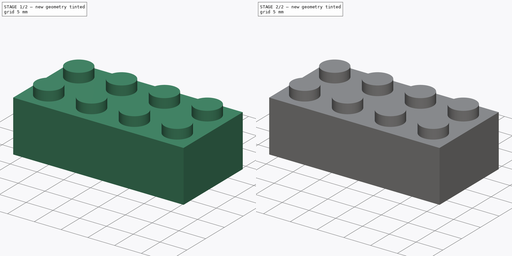
[diagram: build sequence overview — one tinted view per stage of 2, left to right]
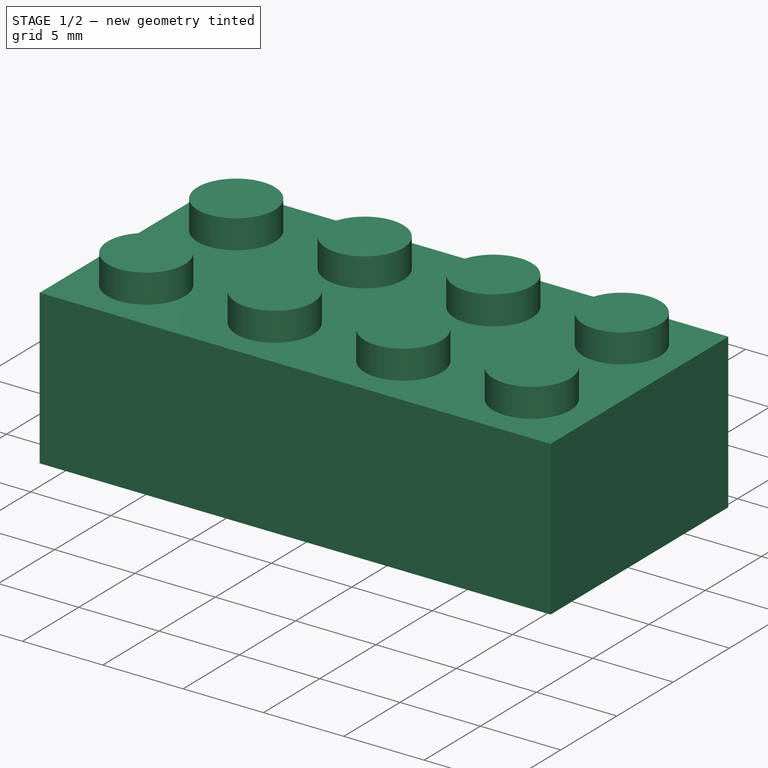
[diagram: stage 1 of 2 — iso view after this stage's code; geometry added in this stage tinted green]
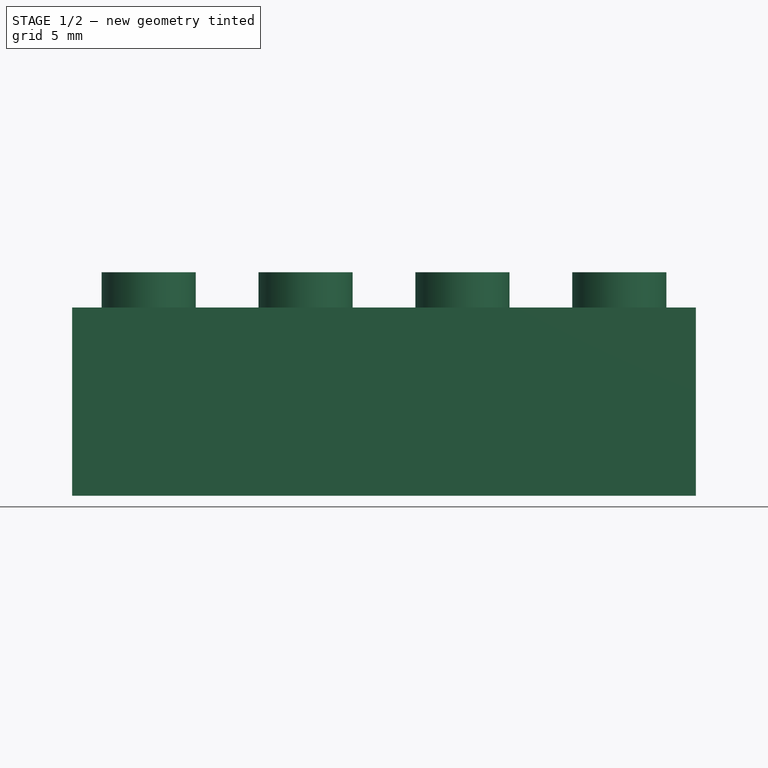
[diagram: stage 1 of 2 — front view after this stage's code; geometry added in this stage tinted green]
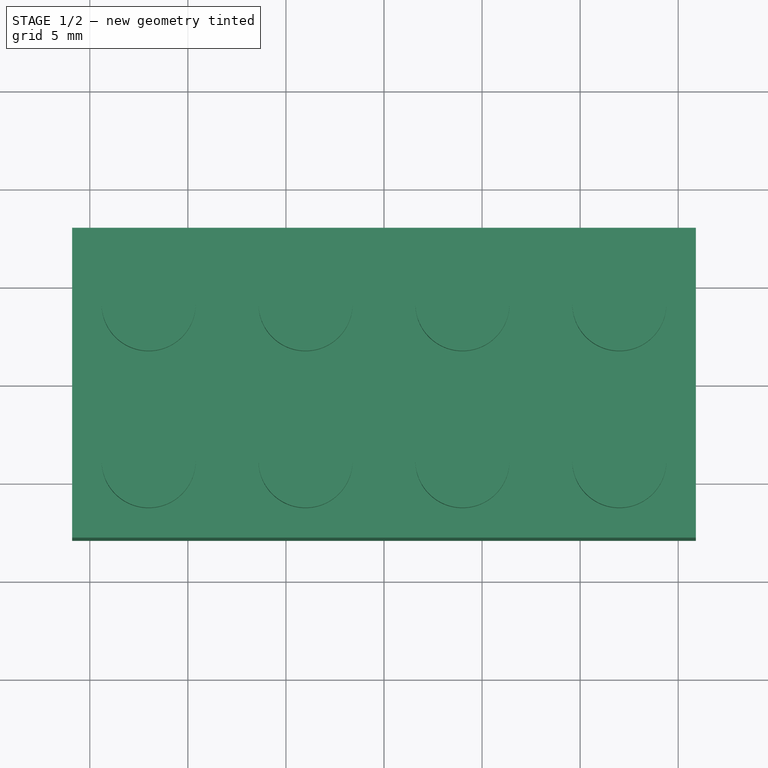
[diagram: stage 1 of 2 — top view after this stage's code; geometry added in this stage tinted green]
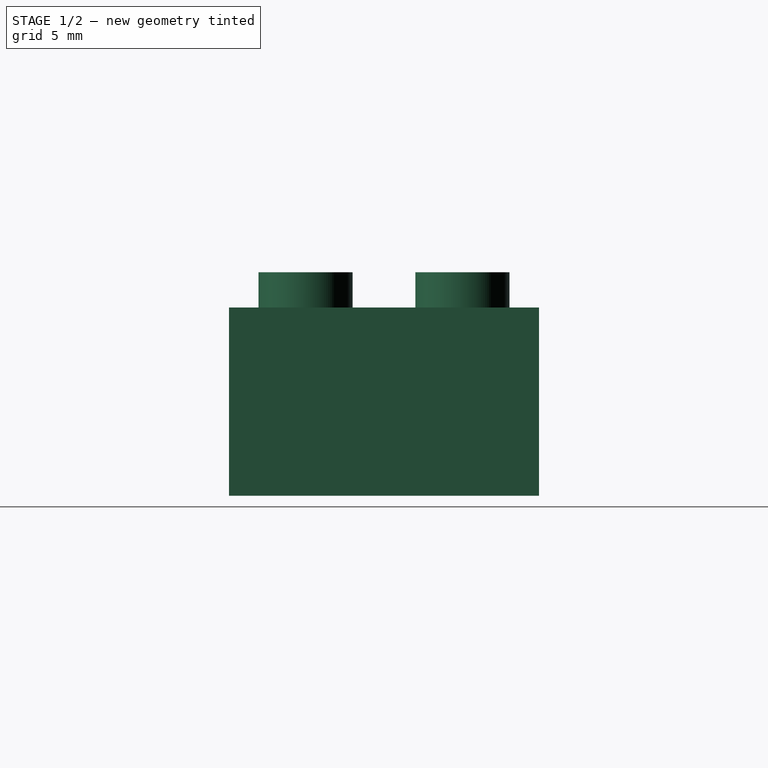
[diagram: stage 1 of 2 — right view after this stage's code; geometry added in this stage tinted green]
FCSTD DOCUMENT  (FreeCAD 0.20R29410 (Git))
Label: 2x4_Normal_Brick
License: All rights reserved
LicenseURL: http://en.wikipedia.org/wiki/All_rights_reserved
objects: Sketcher::SketchObject×6, PartDesign::Pad×3, PartDesign::Pocket×1, PartDesign::Body×1
note: 15 computed .brp shape members not serialized (recipe doc carries the construction recipe); baked Part::Feature solids carry a one-line shape summary decoded from their .brp

FEATURE [Sketcher::SketchObject] Sketch003  label="FrontProfile"
  FullyConstrained = true
  Placement = pos=(0,0,0) rot=(1,0,0;1.5708rad)
  sketch-geometry (10):
    g0: LineSegment StartX=-15.9 StartY=0 StartZ=0 EndX=15.9 EndY=0 EndZ=0
    g1: LineSegment StartX=-15.9 StartY=0 StartZ=0 EndX=-15.9 EndY=8.4 EndZ=0
    g2: LineSegment StartX=-15.9 StartY=8.4 StartZ=0 EndX=-15.9 EndY=9.6 EndZ=0
    g3: LineSegment StartX=-14.4 StartY=11.4 StartZ=0 EndX=-9.6 EndY=11.4 EndZ=0
    g4: GeomPoint X=-12 Y=11.4 Z=0
    g5: LineSegment StartX=-9.6 StartY=11.4 StartZ=0 EndX=-9.6 EndY=9.6 EndZ=0
    g6: GeomPoint X=-4 Y=11.4 Z=0
    g7: LineSegment StartX=-12.3 StartY=8.4 StartZ=0 EndX=-12.3 EndY=8.1 EndZ=0
    g8: LineSegment StartX=-12.3 StartY=8.1 StartZ=0 EndX=-11.7 EndY=8.1 EndZ=0
    g9: GeomPoint X=-12 Y=8.1 Z=0
  constraints (27):
    c: PointOnObject(g0,g-1)
    c: Symmetric(g0,g0,g-1)
    c: DistanceX(g0,g0) = 31.8  'BlockLength'
    c: Coincident(g0,g1)
    c: Vertical(g1)
    c: Coincident(g1,g2)
    c: Vertical(g2)
    c: DistanceY(g0,g2) = 9.6  'BlockHeight'
    c: DistanceY(g1,g2) = 1.2  'WallThickness'
    c: Horizontal(g3)
    c: Symmetric(g3,g3,g4)
    c: DistanceX(g3,g3) = 4.8  'TopCylDiameter'
    c: Coincident(g5,g3)
    c: Vertical(g5)
    c: DistanceY(g5,g5) = 1.8  'TopCylHeight'
    c: Horizontal(g4,g6)
    c: DistanceX(g4,g6) = 8  'CylGap'
    c: DistanceX(g2,g4) = 3.9  'CylDistFromCorner'
    c: Horizontal(g5,g2)
    c: Vertical(g7)
    c: Coincident(g8,g7)
    c: Horizontal(g8)
    c: Symmetric(g8,g7,g9)
    c: Horizontal(g7,g1)
    c: Vertical(g9,g4)
    c: DistanceX(g8,g8) = 0.6  'CylLockWidth'
    c: DistanceY(g7,g7) = 0.3  'CylLockHeight'
FEATURE [Sketcher::SketchObject] Sketch  label="SideProfile"
  FullyConstrained = false
  Placement = pos=(-15.8,0,0) rot=(0.57735,0.57735,0.57735;2.0944rad)
  sketch-geometry (7):
    g0: LineSegment StartX=0 StartY=0 StartZ=0 EndX=-4.65 EndY=0 EndZ=0
    g1: LineSegment StartX=-11.15 StartY=0 StartZ=0 EndX=-11.15 EndY=7.16686 EndZ=0
    g2: LineSegment StartX=-4.65 StartY=7.16686 StartZ=0 EndX=-4.65 EndY=0 EndZ=0
    g3: LineSegment StartX=-11.15 StartY=0 StartZ=0 EndX=-15.8 EndY=0 EndZ=0
    g4: LineSegment StartX=-10.3 StartY=0 StartZ=0 EndX=-10.3 EndY=7.16686 EndZ=0
    g5: LineSegment StartX=-5.5 StartY=7.16686 StartZ=0 EndX=-5.5 EndY=0 EndZ=0
    g6: GeomPoint X=-7.9 Y=0 Z=0
  constraints (19):
    c: Coincident(g0,g-1)
    c: PointOnObject(g3,g-1)
    c: DistanceX(g3,g0) = 15.8  'BlockWidth'
    c: Vertical(g1)
    c: Vertical(g2)
    c: Coincident(g0,g2)
    c: Coincident(g3,g1)
    c: PointOnObject(g1,g-1)
    c: PointOnObject(g4,g-1)
    c: Vertical(g4)
    c: Vertical(g5)
    c: Horizontal(g5,g2)
    c: Horizontal(g2,g4)
    c: Horizontal(g4,g1)
    c: DistanceX(g1,g2) = 6.5  'UnderCylOuterDiameter'
    c: DistanceX(g4,g5) = 4.8  'UnderCylInnerDiameter'
    c: Symmetric(g3,g0,g6)
    c: Symmetric(g5,g4,g6)
    c: Symmetric(g0,g1,g6)
FEATURE [Sketcher::SketchObject] Sketch004
  FullyConstrained = true
  MapMode = 5
  Support = -> [XY_Plane]
  expr: Constraints[10] = <<FrontProfile>>.Constraints.BlockLength
  expr: Constraints[11] = <<SideProfile>>.Constraints.BlockWidth
  sketch-geometry (5):
    g0: LineSegment StartX=-15.9 StartY=7.9 StartZ=0 EndX=-15.9 EndY=-7.9 EndZ=0
    g1: LineSegment StartX=-15.9 StartY=-7.9 StartZ=0 EndX=15.9 EndY=-7.9 EndZ=0
    g2: LineSegment StartX=15.9 StartY=-7.9 StartZ=0 EndX=15.9 EndY=7.9 EndZ=0
    g3: LineSegment StartX=15.9 StartY=7.9 StartZ=0 EndX=-15.9 EndY=7.9 EndZ=0
    g4: GeomPoint X=0 Y=0 Z=0
  constraints (12):
    c: Coincident(g0,g1)
    c: Coincident(g1,g2)
    c: Coincident(g2,g3)
    c: Coincident(g3,g0)
    c: Horizontal(g1)
    c: Horizontal(g3)
    c: Vertical(g0)
    c: Vertical(g2)
    c: Symmetric(g1,g0,g4)
    c: Coincident(g4,g-1)
    c: DistanceX(g1,g1) = 31.8
    c: DistanceY(g2,g2) = 15.8
FEATURE [PartDesign::Pad] Pad
  Direction = (0,0,1)
  Length = 9.6
  Length2 = 10
  Profile = -> Sketch004
  ReferenceAxis = -> Sketch004 [N_Axis]
  Type = 0
  expr: Length = <<FrontProfile>>.Constraints.BlockHeight
FEATURE [Sketcher::SketchObject] Sketch005
  ExternalGeometry = -> [Pad]
  FullyConstrained = true
  MapMode = 5
  Placement = pos=(0,0,9.6) rot=(0,0,1;0rad)
  Support = -> [Pad]
  expr: Constraints[0] = <<FrontProfile>>.Constraints.TopCylDiameter
  expr: Constraints[1] = <<FrontProfile>>.Constraints.CylDistFromCorner
  expr: Constraints[2] = <<FrontProfile>>.Constraints.CylDistFromCorner
  expr: Constraints[4] = <<FrontProfile>>.Constraints.CylGap
  sketch-geometry (8):
    g0: Circle CenterX=-12 CenterY=4 CenterZ=0 NormalX=0 NormalY=0 NormalZ=1 AngleXU=0 Radius=2.4
    g1: Circle CenterX=-4 CenterY=4 CenterZ=0 NormalX=0 NormalY=0 NormalZ=1 AngleXU=0 Radius=2.4
    g2: Circle CenterX=12 CenterY=4 CenterZ=0 NormalX=0 NormalY=0 NormalZ=1 AngleXU=0 Radius=2.4
    g3: Circle CenterX=4 CenterY=4 CenterZ=0 NormalX=0 NormalY=0 NormalZ=1 AngleXU=0 Radius=2.4
    g4: Circle CenterX=-12 CenterY=-4 CenterZ=0 NormalX=0 NormalY=0 NormalZ=1 AngleXU=0 Radius=2.4
    g5: Circle CenterX=-4 CenterY=-4 CenterZ=0 NormalX=0 NormalY=0 NormalZ=1 AngleXU=0 Radius=2.4
    g6: Circle CenterX=12 CenterY=-4 CenterZ=0 NormalX=0 NormalY=0 NormalZ=1 AngleXU=0 Radius=2.4
    g7: Circle CenterX=4 CenterY=-4 CenterZ=0 NormalX=0 NormalY=0 NormalZ=1 AngleXU=0 Radius=2.4
  constraints (18):
    c: Diameter(g0) = 4.8
    c: DistanceX(g-3,g0) = 3.9
    c: DistanceY(g0,g-3) = 3.9
    c: Horizontal(g1,g0)
    c: DistanceX(g0,g1) = 8
    c: Symmetric(g4,g0,g-1)
    c: Symmetric(g1,g5,g-1)
    c: Equal(g0,g1)
    c: Equal(g1,g2)
    c: Equal(g2,g3)
    c: Equal(g3,g4)
    c: Equal(g4,g5)
    c: Equal(g5,g6)
    c: Equal(g6,g7)
    c: Symmetric(g1,g3,g-2)
    c: Symmetric(g2,g0,g-2)
    c: Symmetric(g6,g0,g-1)
    c: Symmetric(g7,g1,g-1)
FEATURE [PartDesign::Pad] Pad001
  BaseFeature = -> Pad
  Direction = (0,0,1)
  Length = 1.8
  Length2 = 10
  Profile = -> Sketch005
  ReferenceAxis = -> Sketch005 [N_Axis]
  Type = 0
  expr: Length = <<FrontProfile>>.Constraints.TopCylHeight
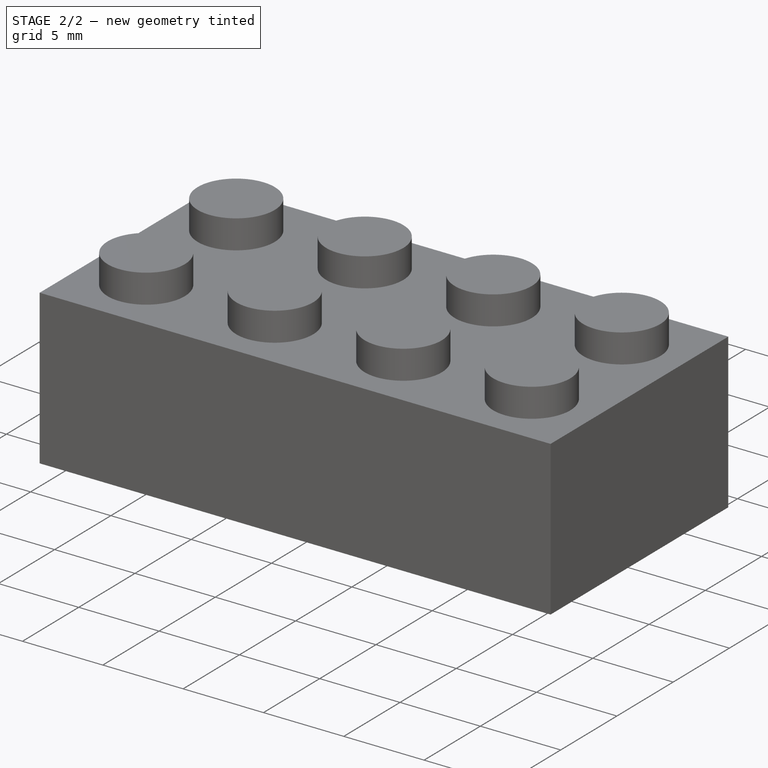
[diagram: stage 2 of 2 — iso view after this stage's code; geometry added in this stage tinted green]
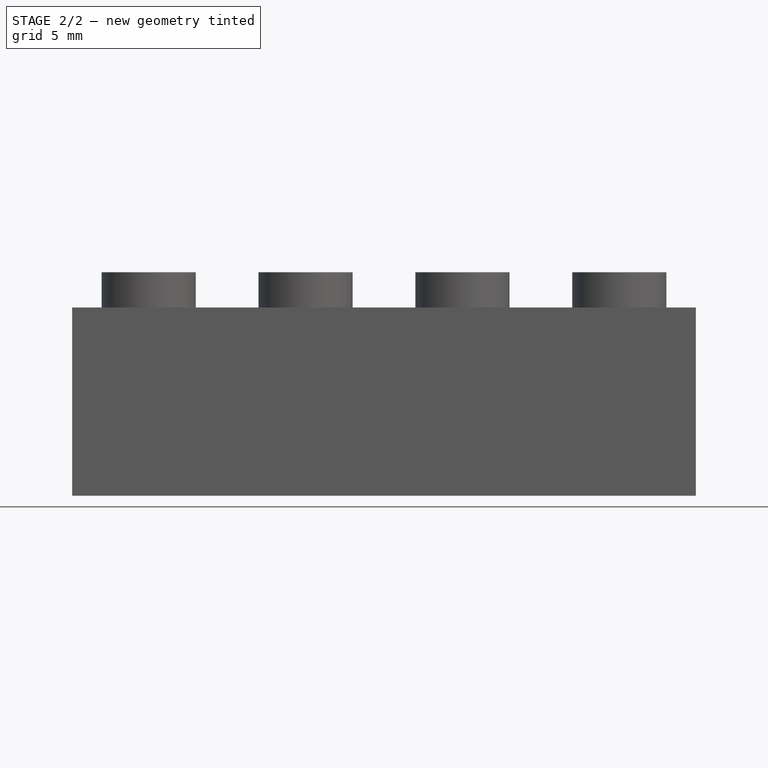
[diagram: stage 2 of 2 — front view after this stage's code; geometry added in this stage tinted green]
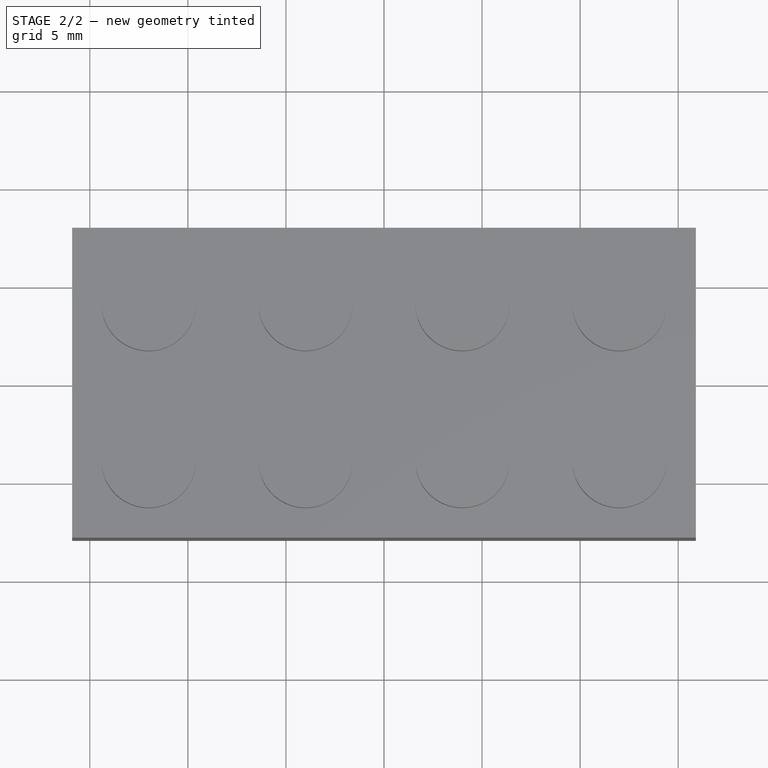
[diagram: stage 2 of 2 — top view after this stage's code; geometry added in this stage tinted green]
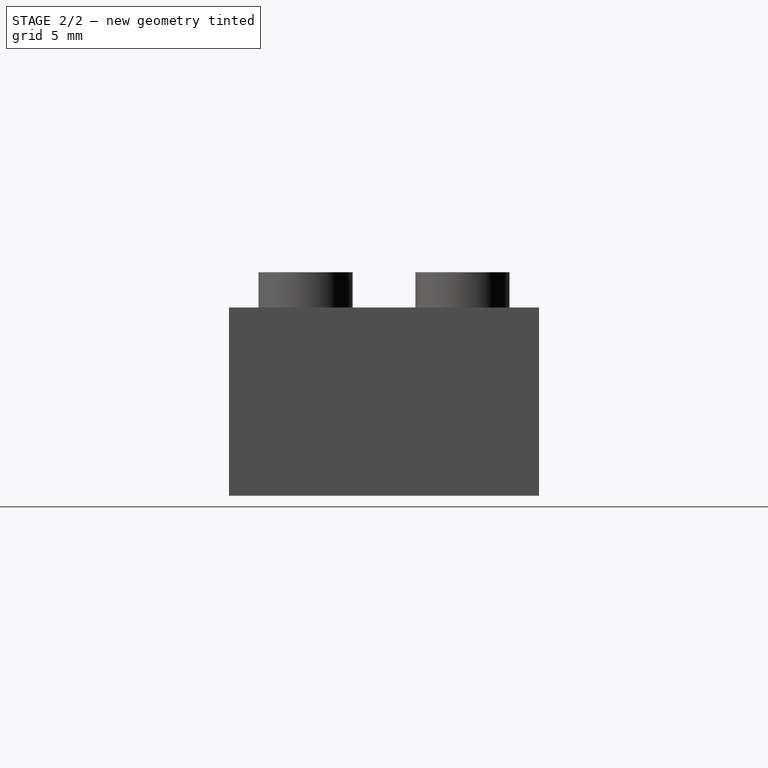
[diagram: stage 2 of 2 — right view after this stage's code; geometry added in this stage tinted green]
FEATURE [Sketcher::SketchObject] Sketch006
  ExternalGeometry = -> [Pad001]
  FullyConstrained = true
  MapMode = 5
  Placement = pos=(0,0,0) rot=(1,0,0;3.14159rad)
  Support = -> [Pad001]
  expr: Constraints[0] = <<FrontProfile>>.Constraints.WallThickness
  expr: Constraints[1] = <<FrontProfile>>.Constraints.WallThickness
  expr: Constraints[42] = <<FrontProfile>>.Constraints.CylDistFromCorner
  expr: Constraints[43] = <<FrontProfile>>.Constraints.CylLockWidth
  expr: Constraints[44] = <<FrontProfile>>.Constraints.CylLockHeight
  expr: Constraints[45] = <<FrontProfile>>.Constraints.CylGap
  expr: Constraints[46] = <<FrontProfile>>.Constraints.CylDistFromCorner
  sketch-geometry (72):
    g0: GeomPoint X=-14.7 Y=6.7 Z=0
    g1: LineSegment StartX=-14.7 StartY=6.7 StartZ=0 EndX=-14.7 EndY=4.3 EndZ=0
    g2: LineSegment StartX=-14.7 StartY=4.3 StartZ=0 EndX=-14.4 EndY=4.3 EndZ=0
    g3: LineSegment StartX=-14.4 StartY=4.3 StartZ=0 EndX=-14.4 EndY=3.7 EndZ=0
    g4: LineSegment StartX=-14.4 StartY=3.7 StartZ=0 EndX=-14.7 EndY=3.7 EndZ=0
    g5: LineSegment StartX=-14.7 StartY=3.7 StartZ=0 EndX=-14.7 EndY=0 EndZ=0
    g6: LineSegment StartX=-14.7 StartY=6.7 StartZ=0 EndX=-12.3 EndY=6.7 EndZ=0
    g7: LineSegment StartX=-12.3 StartY=6.7 StartZ=0 EndX=-12.3 EndY=6.4 EndZ=0
    g8: LineSegment StartX=-12.3 StartY=6.4 StartZ=0 EndX=-11.7 EndY=6.4 EndZ=0
    g9: LineSegment StartX=-11.7 StartY=6.4 StartZ=0 EndX=-11.7 EndY=6.7 EndZ=0
    g10: LineSegment StartX=-11.7 StartY=6.7 StartZ=0 EndX=-4.3 EndY=6.7 EndZ=0
    g11: LineSegment StartX=-4.3 StartY=6.7 StartZ=0 EndX=-4.3 EndY=6.4 EndZ=0
    g12: LineSegment StartX=-4.3 StartY=6.4 StartZ=0 EndX=-3.7 EndY=6.4 EndZ=0
    g13: LineSegment StartX=-3.7 StartY=6.4 StartZ=0 EndX=-3.7 EndY=6.7 EndZ=0
    g14: LineSegment StartX=-3.7 StartY=6.7 StartZ=0 EndX=0 EndY=6.7 EndZ=0
    g15: GeomPoint X=-14.4 Y=4 Z=0
    g16: GeomPoint X=-12 Y=6.4 Z=0
    g17: GeomPoint X=-4 Y=6.4 Z=0
    g18: GeomPoint X=14.7 Y=6.7 Z=0
    g19: LineSegment StartX=14.7 StartY=6.7 StartZ=0 EndX=14.7 EndY=4.3 EndZ=0
    g20: LineSegment StartX=14.7 StartY=4.3 StartZ=0 EndX=14.4 EndY=4.3 EndZ=0
    g21: LineSegment StartX=14.4 StartY=4.3 StartZ=0 EndX=14.4 EndY=3.7 EndZ=0
    g22: LineSegment StartX=14.4 StartY=3.7 StartZ=0 EndX=14.7 EndY=3.7 EndZ=0
    g23: LineSegment StartX=14.7 StartY=3.7 StartZ=0 EndX=14.7 EndY=0 EndZ=0
    g24: LineSegment StartX=14.7 StartY=6.7 StartZ=0 EndX=12.3 EndY=6.7 EndZ=0
    g25: LineSegment StartX=12.3 StartY=6.7 StartZ=0 EndX=12.3 EndY=6.4 EndZ=0
    g26: LineSegment StartX=12.3 StartY=6.4 StartZ=0 EndX=11.7 EndY=6.4 EndZ=0
    g27: LineSegment StartX=11.7 StartY=6.4 StartZ=0 EndX=11.7 EndY=6.7 EndZ=0
    g28: LineSegment StartX=11.7 StartY=6.7 StartZ=0 EndX=4.3 EndY=6.7 EndZ=0
    g29: LineSegment StartX=4.3 StartY=6.7 StartZ=0 EndX=4.3 EndY=6.4 EndZ=0
    g30: LineSegment StartX=4.3 StartY=6.4 StartZ=0 EndX=3.7 EndY=6.4 EndZ=0
    g31: LineSegment StartX=3.7 StartY=6.4 StartZ=0 EndX=3.7 EndY=6.7 EndZ=0
    g32: LineSegment StartX=3.7 StartY=6.7 StartZ=0 EndX=0 EndY=6.7 EndZ=0
    g33: GeomPoint X=14.4 Y=4 Z=0
    g34: GeomPoint X=12 Y=6.4 Z=0
    g35: GeomPoint X=4 Y=6.4 Z=0
    g36: GeomPoint X=14.7 Y=-6.7 Z=0
    g37: LineSegment StartX=14.7 StartY=-6.7 StartZ=0 EndX=14.7 EndY=-4.3 EndZ=0
    g38: LineSegment StartX=14.7 StartY=-4.3 StartZ=0 EndX=14.4 EndY=-4.3 EndZ=0
    g39: LineSegment StartX=14.4 StartY=-4.3 StartZ=0 EndX=14.4 EndY=-3.7 EndZ=0
    g40: LineSegment StartX=14.4 StartY=-3.7 StartZ=0 EndX=14.7 EndY=-3.7 EndZ=0
    g41: LineSegment StartX=14.7 StartY=-3.7 StartZ=0 EndX=14.7 EndY=0 EndZ=0
    g42: LineSegment StartX=14.7 StartY=-6.7 StartZ=0 EndX=12.3 EndY=-6.7 EndZ=0
    g43: LineSegment StartX=12.3 StartY=-6.7 StartZ=0 EndX=12.3 EndY=-6.4 EndZ=0
    g44: LineSegment StartX=12.3 StartY=-6.4 StartZ=0 EndX=11.7 EndY=-6.4 EndZ=0
    g45: LineSegment StartX=11.7 StartY=-6.4 StartZ=0 EndX=11.7 EndY=-6.7 EndZ=0
    g46: LineSegment StartX=11.7 StartY=-6.7 StartZ=0 EndX=4.3 EndY=-6.7 EndZ=0
    g47: LineSegment StartX=4.3 StartY=-6.7 StartZ=0 EndX=4.3 EndY=-6.4 EndZ=0
    g48: LineSegment StartX=4.3 StartY=-6.4 StartZ=0 EndX=3.7 EndY=-6.4 EndZ=0
    g49: LineSegment StartX=3.7 StartY=-6.4 StartZ=0 EndX=3.7 EndY=-6.7 EndZ=0
    g50: GeomPoint X=14.4 Y=-4 Z=0
    g51: GeomPoint X=12 Y=-6.4 Z=0
    g52: GeomPoint X=4 Y=-6.4 Z=0
    g53: LineSegment StartX=3.7 StartY=-6.7 StartZ=0 EndX=0 EndY=-6.7 EndZ=0
    g54: GeomPoint X=-14.7 Y=-6.7 Z=0
    g55: LineSegment StartX=-14.7 StartY=-6.7 StartZ=0 EndX=-14.7 EndY=-4.3 EndZ=0
    g56: LineSegment StartX=-14.7 StartY=-4.3 StartZ=0 EndX=-14.4 EndY=-4.3 EndZ=0
    g57: LineSegment StartX=-14.4 StartY=-4.3 StartZ=0 EndX=-14.4 EndY=-3.7 EndZ=0
    g58: LineSegment StartX=-14.4 StartY=-3.7 StartZ=0 EndX=-14.7 EndY=-3.7 EndZ=0
    g59: LineSegment StartX=-14.7 StartY=-3.7 StartZ=0 EndX=-14.7 EndY=0 EndZ=0
    g60: LineSegment StartX=-14.7 StartY=-6.7 StartZ=0 EndX=-12.3 EndY=-6.7 EndZ=0
    g61: LineSegment StartX=-12.3 StartY=-6.7 StartZ=0 EndX=-12.3 EndY=-6.4 EndZ=0
    g62: LineSegment StartX=-12.3 StartY=-6.4 StartZ=0 EndX=-11.7 EndY=-6.4 EndZ=0
    g63: LineSegment StartX=-11.7 StartY=-6.4 StartZ=0 EndX=-11.7 EndY=-6.7 EndZ=0
    g64: LineSegment StartX=-11.7 StartY=-6.7 StartZ=0 EndX=-4.3 EndY=-6.7 EndZ=0
    g65: LineSegment StartX=-4.3 StartY=-6.7 StartZ=0 EndX=-4.3 EndY=-6.4 EndZ=0
    g66: LineSegment StartX=-4.3 StartY=-6.4 StartZ=0 EndX=-3.7 EndY=-6.4 EndZ=0
    g67: LineSegment StartX=-3.7 StartY=-6.4 StartZ=0 EndX=-3.7 EndY=-6.7 EndZ=0
    g68: GeomPoint X=-14.4 Y=-4 Z=0
    g69: GeomPoint X=-12 Y=-6.4 Z=0
    g70: GeomPoint X=-4 Y=-6.4 Z=0
    g71: LineSegment StartX=-3.7 StartY=-6.7 StartZ=0 EndX=0 EndY=-6.7 EndZ=0
  constraints (172):
    c: DistanceX(g-3,g0) = 1.2
    c: DistanceY(g0,g-3) = 1.2
    c: Coincident(g1,g0)
    c: Vertical(g1)
    c: Coincident(g1,g2)
    c: Horizontal(g2)
    c: Coincident(g2,g3)
    c: Vertical(g3)
    c: Coincident(g3,g4)
    c: Coincident(g4,g5)
    c: PointOnObject(g5,g-1)
    c: Vertical(g5)
    c: Coincident(g1,g6)
    c: Horizontal(g6)
    c: Coincident(g6,g7)
    c: Vertical(g7)
    c: Coincident(g7,g8)
    c: Horizontal(g8)
    c: Coincident(g8,g9)
    c: Vertical(g9)
    c: Coincident(g9,g10)
    c: Horizontal(g10)
    c: Coincident(g10,g11)
    c: Vertical(g11)
    c: Coincident(g11,g12)
    c: Horizontal(g12)
    c: Coincident(g12,g13)
    c: Vertical(g13)
    c: Coincident(g13,g14)
    c: PointOnObject(g14,g-2)
    c: Horizontal(g14)
    c: Equal(g3,g8)
    c: Equal(g8,g12)
    c: Horizontal(g4)
    c: Equal(g4,g2)
    c: Equal(g2,g7)
    c: Equal(g7,g9)
    c: Equal(g9,g11)
    c: Equal(g11,g13)
    c: Symmetric(g7,g8,g16)
    c: Symmetric(g11,g12,g17)
    c: Symmetric(g3,g2,g15)
    c: DistanceY(g15,g-3) = 3.9
    c: DistanceX(g12,g12) = 0.6
    c: DistanceY(g13,g13) = 0.3
    c: DistanceX(g16,g17) = 8
    c: DistanceX(g-3,g16) = 3.9
    c: Coincident(g19,g18)
    c: Vertical(g19)
    c: Coincident(g19,g20)
    c: Horizontal(g20)
    c: Coincident(g20,g21)
    c: Vertical(g21)
    c: Coincident(g21,g22)
    c: Coincident(g22,g23)
    c: Vertical(g23)
    c: Coincident(g19,g24)
    c: Horizontal(g24)
    c: Coincident(g24,g25)
    c: Vertical(g25)
    c: Coincident(g25,g26)
    c: Horizontal(g26)
    c: Coincident(g26,g27)
    c: Vertical(g27)
    c: Coincident(g27,g28)
    c: Horizontal(g28)
    c: Coincident(g28,g29)
    c: Vertical(g29)
    c: Coincident(g29,g30)
    c: Horizontal(g30)
    c: Coincident(g30,g31)
    c: Vertical(g31)
    c: Coincident(g31,g32)
    c: Horizontal(g22)
    c: Symmetric(g25,g26,g34)
    c: Symmetric(g29,g30,g35)
    c: Symmetric(g21,g20,g33)
    c: Coincident(g32,g14)
    c: Coincident(g37,g36)
    c: Vertical(g37)
    c: Coincident(g37,g38)
    c: Horizontal(g38)
    c: Coincident(g38,g39)
    c: Vertical(g39)
    c: Coincident(g39,g40)
    c: Coincident(g40,g41)
    c: Vertical(g41)
    c: Coincident(g37,g42)
    c: Horizontal(g42)
    c: Coincident(g42,g43)
    c: Vertical(g43)
    c: Coincident(g43,g44)
    c: Horizontal(g44)
    c: Coincident(g44,g45)
    c: Vertical(g45)
    c: Coincident(g45,g46)
    c: Horizontal(g46)
    c: Coincident(g46,g47)
    c: Vertical(g47)
    c: Coincident(g47,g48)
    c: Horizontal(g48)
    c: Coincident(g48,g49)
    c: Vertical(g49)
    c: Coincident(g49,g53)
    c: Horizontal(g53)
    c: Horizontal(g40)
    c: Symmetric(g43,g44,g51)
    c: Symmetric(g47,g48,g52)
    c: Symmetric(g39,g38,g50)
    c: Coincident(g55,g54)
    c: Vertical(g55)
    c: Coincident(g55,g56)
    c: Horizontal(g56)
    c: Coincident(g56,g57)
    c: Vertical(g57)
    c: Coincident(g57,g58)
    c: Coincident(g58,g59)
    c: Coincident(g55,g60)
    c: Horizontal(g60)
    c: Coincident(g60,g61)
    c: Vertical(g61)
    c: Coincident(g61,g62)
    c: Horizontal(g62)
    c: Coincident(g62,g63)
    c: Vertical(g63)
    c: Coincident(g63,g64)
    c: Horizontal(g64)
    c: Coincident(g64,g65)
    c: Vertical(g65)
    c: Coincident(g65,g66)
    c: Horizontal(g66)
    c: Coincident(g66,g67)
    c: Vertical(g67)
    c: Coincident(g67,g71)
    c: Horizontal(g71)
    c: Horizontal(g58)
    c: Symmetric(g61,g62,g69)
    c: Symmetric(g65,g66,g70)
    c: Symmetric(g57,g56,g68)
    c: Coincident(g59,g5)
    c: Coincident(g71,g53)
    c: PointOnObject(g53,g-2)
    c: Coincident(g41,g23)
    c: Symmetric(g5,g23,g-1)
    c: Equal(g11,g31)
    c: Equal(g29,g27)
    c: Equal(g27,g25)
    c: Equal(g25,g20)
    c: Equal(g22,g40)
    c: Equal(g43,g45)
    c: Equal(g47,g49)
    c: Equal(g67,g65)
    c: Equal(g12,g30)
    c: Equal(g30,g26)
    c: Equal(g26,g21)
    c: Equal(g21,g39)
    c: Equal(g39,g44)
    c: Equal(g44,g48)
    c: Equal(g48,g66)
    c: Equal(g66,g62)
    c: Equal(g62,g57)
    c: Symmetric(g1,g55,g-1)
    c: Symmetric(g58,g4,g-1)
    c: Symmetric(g31,g13,g-2)
    c: Symmetric(g27,g9,g-2)
    c: Symmetric(g37,g1,g-1)
    c: Symmetric(g20,g2,g-2)
    c: Symmetric(g57,g39,g-2)
    c: Symmetric(g61,g7,g-1)
    c: Symmetric(g65,g11,g-1)
    c: Symmetric(g47,g29,g-1)
    c: Symmetric(g44,g26,g-1)
FEATURE [PartDesign::Pocket] Pocket
  BaseFeature = -> Pad001
  Direction = (0,0,1)
  Length = 8.4
  Length2 = 5
  Profile = -> Sketch006
  ReferenceAxis = -> Sketch006 [N_Axis]
  Type = 0
  expr: Length = <<FrontProfile>>.Constraints.BlockHeight - <<FrontProfile>>.Constraints.WallThickness
FEATURE [Sketcher::SketchObject] Sketch007
  FullyConstrained = true
  MapMode = 5
  Placement = pos=(0,0,8.4) rot=(1,0,0;3.14159rad)
  Support = -> [Pocket]
  expr: Constraints[6] = <<FrontProfile>>.Constraints.CylGap
  expr: Constraints[7] = <<SideProfile>>.Constraints.UnderCylInnerDiameter
  expr: Constraints[8] = <<SideProfile>>.Constraints.UnderCylOuterDiameter
  sketch-geometry (6):
    g0: Circle CenterX=0 CenterY=0 CenterZ=0 NormalX=0 NormalY=0 NormalZ=1 AngleXU=0 Radius=2.4
    g1: Circle CenterX=0 CenterY=0 CenterZ=0 NormalX=0 NormalY=0 NormalZ=1 AngleXU=0 Radius=3.25
    g2: Circle CenterX=-8 CenterY=0 CenterZ=0 NormalX=0 NormalY=0 NormalZ=1 AngleXU=0 Radius=2.4
    g3: Circle CenterX=-8 CenterY=0 CenterZ=0 NormalX=0 NormalY=0 NormalZ=1 AngleXU=0 Radius=3.25
    g4: Circle CenterX=8 CenterY=0 CenterZ=0 NormalX=0 NormalY=0 NormalZ=1 AngleXU=0 Radius=2.4
    g5: Circle CenterX=8 CenterY=0 CenterZ=0 NormalX=0 NormalY=0 NormalZ=1 AngleXU=0 Radius=3.25
  constraints (13):
    c: Coincident(g0,g-1)
    c: Coincident(g1,g0)
    c: PointOnObject(g2,g-1)
    c: Coincident(g3,g2)
    c: Coincident(g5,g4)
    c: Symmetric(g2,g4,g-2)
    c: DistanceX(g2,g0) = 8
    c: Diameter(g0) = 4.8
    c: Diameter(g1) = 6.5
    c: Equal(g0,g2)
    c: Equal(g2,g4)
    c: Equal(g1,g3)
    c: Equal(g3,g5)
FEATURE [PartDesign::Pad] Pad002
  BaseFeature = -> Pocket
  Direction = (0,0,-1)
  Length = 10
  Length2 = 10
  Profile = -> Sketch007
  ReferenceAxis = -> Sketch007 [N_Axis]
  Type = 3
  UpToFace = -> Pocket [Face4]
FEATURE [PartDesign::Body] Body
  Group = -> [Sketch004,Pad,Sketch005,Pad001,Sketch006,Pocket,Sketch007,Pad002]
  Origin = -> Origin
  Tip = -> Pad002
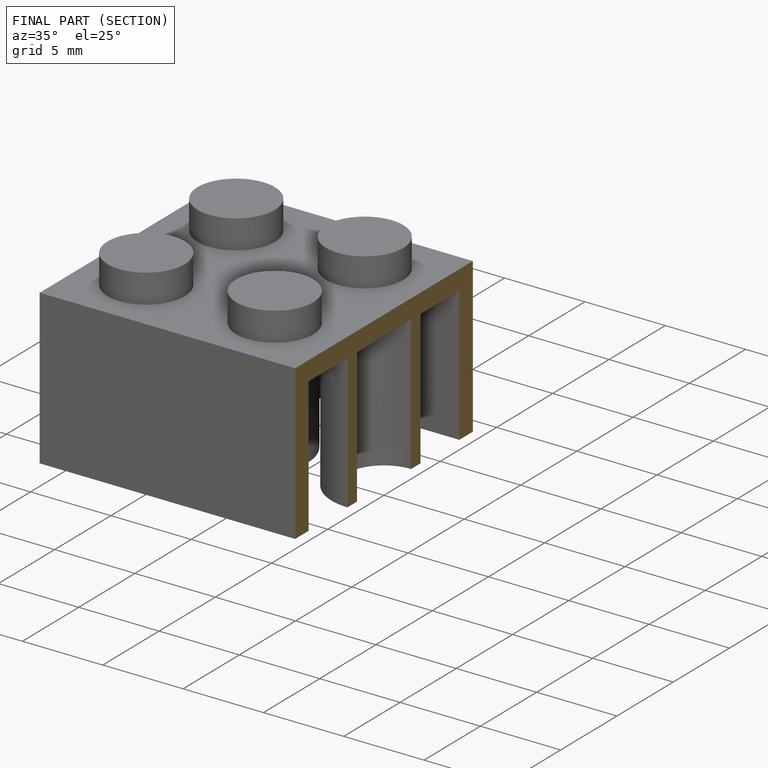
[diagram: finished part — half-section view (interior)]
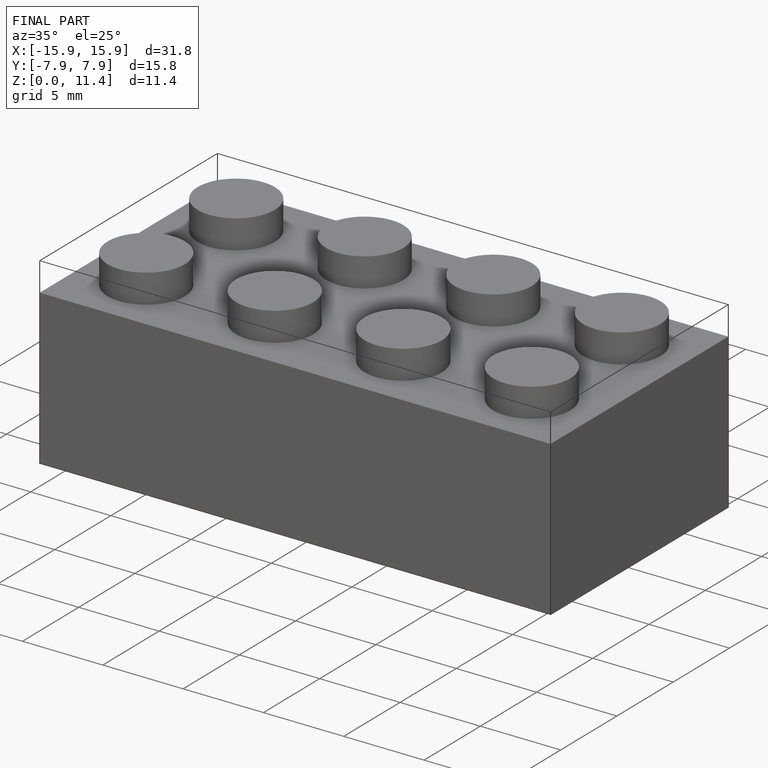
[diagram: finished part — iso view with bounding-box wireframe]
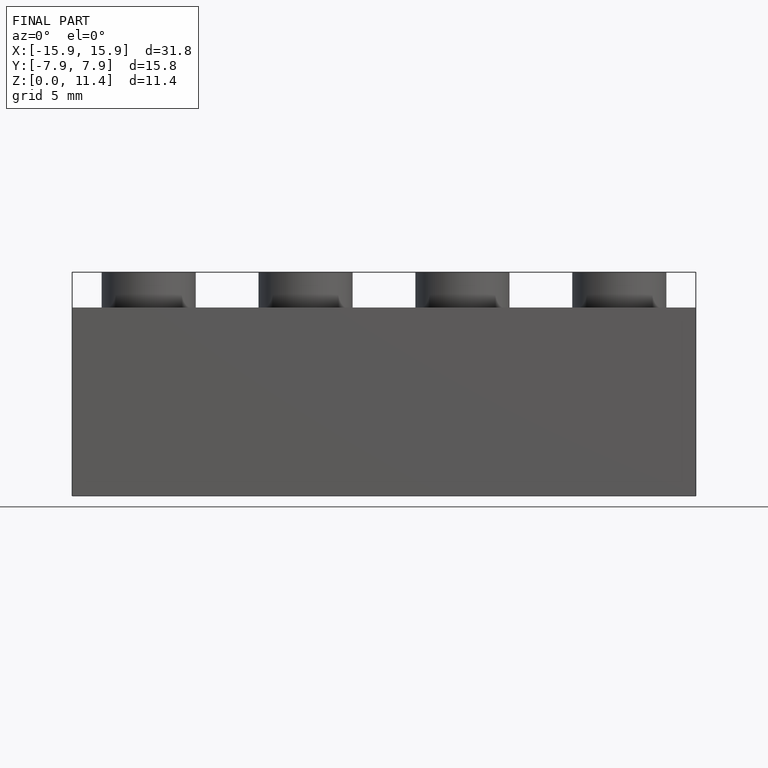
[diagram: finished part — front view with bounding-box wireframe]
